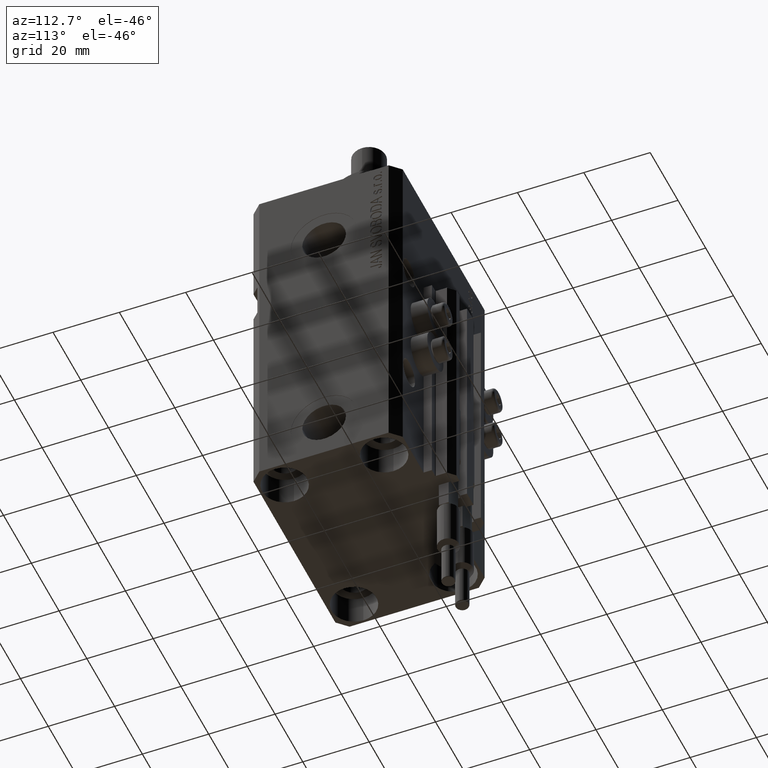
[diagram: clean part render]
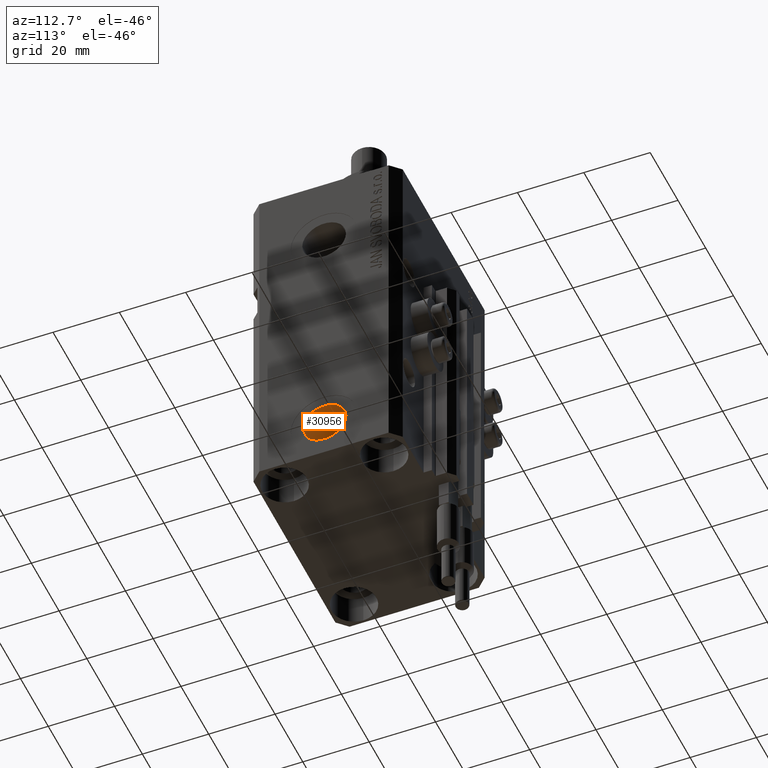
[diagram: same view with one face highlighted and labeled with its STEP entity id]
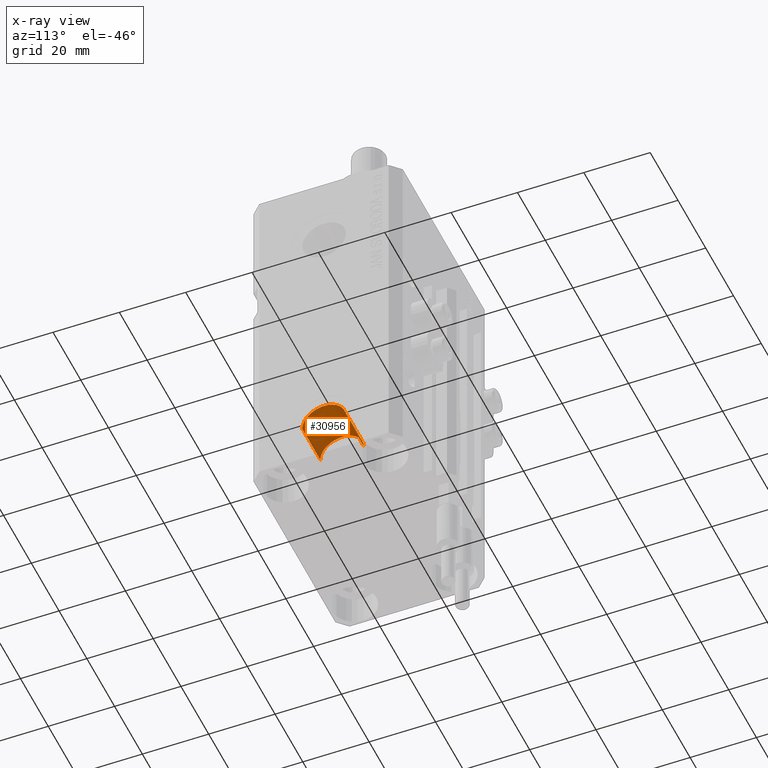
[diagram: x-ray of the same camera — body ghosted, the highlighted face saturated]
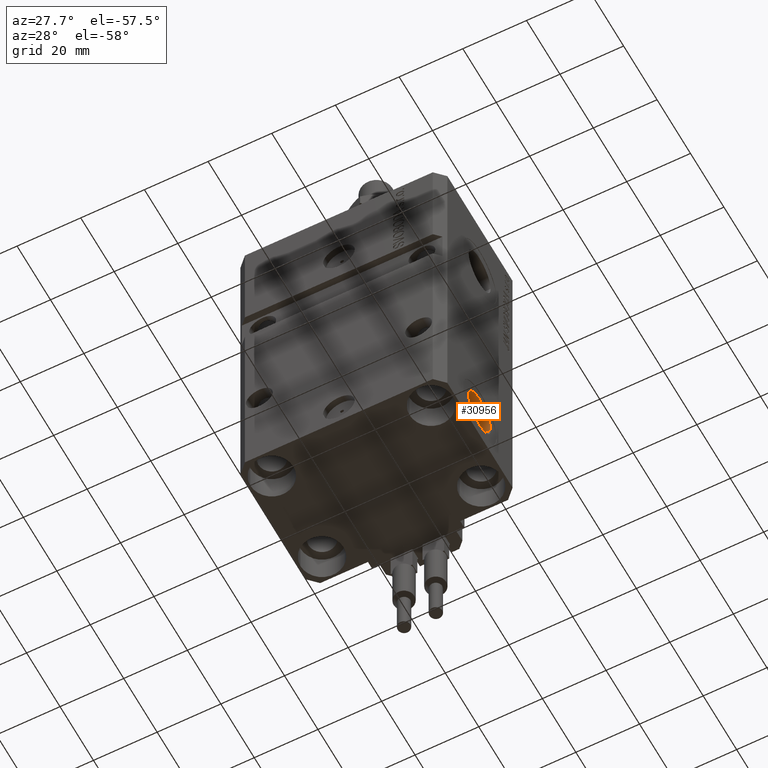
[diagram: same view with one face highlighted and labeled with its STEP entity id]
A machine part, auxiliary view. The second image highlights one B-rep face of the part: STEP entity #30956.
The next image is the same camera in x-ray: the body ghosted, the highlighted face saturated — about 0% of this face is hidden behind the body in this view.
A second angle (auxiliary view) of the same face is appended — the face is thin or edge-on in the first view.
In plain terms, the highlighted cylindrical surface (edge-blend (fillet) strip) has radius 6.58 mm, axis along (1, -0, 0).
Its self-contained STEP definition (entity closure, byte-faithful):
#3338 = CARTESIAN_POINT ( 'NONE',  ( 32.39999999999686509, 6.579999999999555982, -95.00000000000000000 ) ) ;
#4689 = AXIS2_PLACEMENT_3D ( 'NONE', #4993, #47807, #44013 ) ;
#4993 = CARTESIAN_POINT ( 'NONE',  ( 19.39999999999677271, -2.588741187226566333E-13, -95.00000000000000000 ) ) ;
#5362 = LINE ( 'NONE', #17016, #10421 ) ;
#8223 = EDGE_CURVE ( 'NONE', #8383, #15934, #38204, .T. ) ;
#8383 = VERTEX_POINT ( 'NONE', #43441 ) ;
#10026 = FACE_OUTER_BOUND ( 'NONE', #39508, .T. ) ;
#10421 = VECTOR ( 'NONE', #32496, 1000.000000000000000 ) ;
#12221 = ORIENTED_EDGE ( 'NONE', *, *, #39031, .F. ) ;
#14266 = CARTESIAN_POINT ( 'NONE',  ( 32.39999999999668034, -6.580000000000419291, -95.00000000000000000 ) ) ;
#14639 = DIRECTION ( 'NONE',  ( 1.370906090437600963E-14, 1.000000000000000000, 0.000000000000000000 ) ) ;
#15934 = VERTEX_POINT ( 'NONE', #17497 ) ;
#16351 = AXIS2_PLACEMENT_3D ( 'NONE', #38211, #34168, #14639 ) ;
#17016 = CARTESIAN_POINT ( 'NONE',  ( 19.39999999999686153, 6.579999999999729177, -95.00000000000000000 ) ) ;
#17497 = CARTESIAN_POINT ( 'NONE',  ( 19.39999999999668745, -6.580000000000246096, -95.00000000000000000 ) ) ;
#22678 = CARTESIAN_POINT ( 'NONE',  ( 19.39999999999668745, -6.580000000000246096, -95.00000000000000000 ) ) ;
#23647 = AXIS2_PLACEMENT_3D ( 'NONE', #46211, #26715, #35352 ) ;
#23996 = VERTEX_POINT ( 'NONE', #3338 ) ;
#25242 = VECTOR ( 'NONE', #42440, 1000.000000000000000 ) ;
#26715 = DIRECTION ( 'NONE',  ( 1.000000000000000000, -1.334402673828349134E-14, 0.000000000000000000 ) ) ;
#28826 = CYLINDRICAL_SURFACE ( 'NONE', #4689, 6.579999999999987637 ) ;
#30449 = EDGE_CURVE ( 'NONE', #8383, #23996, #5362, .T. ) ;
#30836 = ORIENTED_EDGE ( 'NONE', *, *, #8223, .F. ) ;
#30956 = ADVANCED_FACE ( 'NONE', ( #10026 ), #28826, .F. ) ;
#32496 = DIRECTION ( 'NONE',  ( 1.000000000000000000, -1.334402673828349292E-14, -0.000000000000000000 ) ) ;
#34168 = DIRECTION ( 'NONE',  ( 1.000000000000000000, -1.334402673828349134E-14, 0.000000000000000000 ) ) ;
#35352 = DIRECTION ( 'NONE',  ( 1.318178933113077855E-14, 1.000000000000000000, 0.000000000000000000 ) ) ;
#37899 = LINE ( 'NONE', #22678, #25242 ) ;
#38185 = CIRCLE ( 'NONE', #16351, 6.579999999999987637 ) ;
#38204 = CIRCLE ( 'NONE', #23647, 6.579999999999987637 ) ;
#38211 = CARTESIAN_POINT ( 'NONE',  ( 32.39999999999677271, -4.323464663203420381E-13, -95.00000000000000000 ) ) ;
#39031 = EDGE_CURVE ( 'NONE', #15934, #45209, #37899, .T. ) ;
#39508 = EDGE_LOOP ( 'NONE', ( #12221, #30836, #46707, #49013 ) ) ;
#42440 = DIRECTION ( 'NONE',  ( 1.000000000000000000, -1.334402673828349292E-14, -0.000000000000000000 ) ) ;
#43441 = CARTESIAN_POINT ( 'NONE',  ( 19.39999999999686153, 6.579999999999729177, -95.00000000000000000 ) ) ;
#44013 = DIRECTION ( 'NONE',  ( 1.318178933113077855E-14, 1.000000000000000000, 0.000000000000000000 ) ) ;
#45209 = VERTEX_POINT ( 'NONE', #14266 ) ;
#46211 = CARTESIAN_POINT ( 'NONE',  ( 19.39999999999677271, -2.588741187226566333E-13, -95.00000000000000000 ) ) ;
#46617 = EDGE_CURVE ( 'NONE', #23996, #45209, #38185, .T. ) ;
#46707 = ORIENTED_EDGE ( 'NONE', *, *, #30449, .T. ) ;
#47807 = DIRECTION ( 'NONE',  ( 1.000000000000000000, -1.334402673828349292E-14, -0.000000000000000000 ) ) ;
#49013 = ORIENTED_EDGE ( 'NONE', *, *, #46617, .T. ) ;